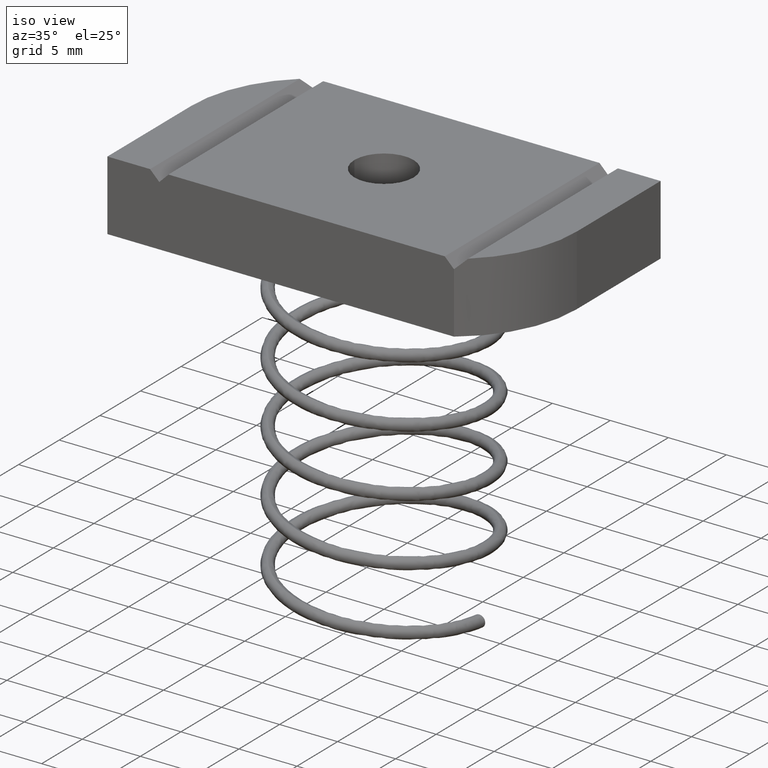
[diagram: clean part render]
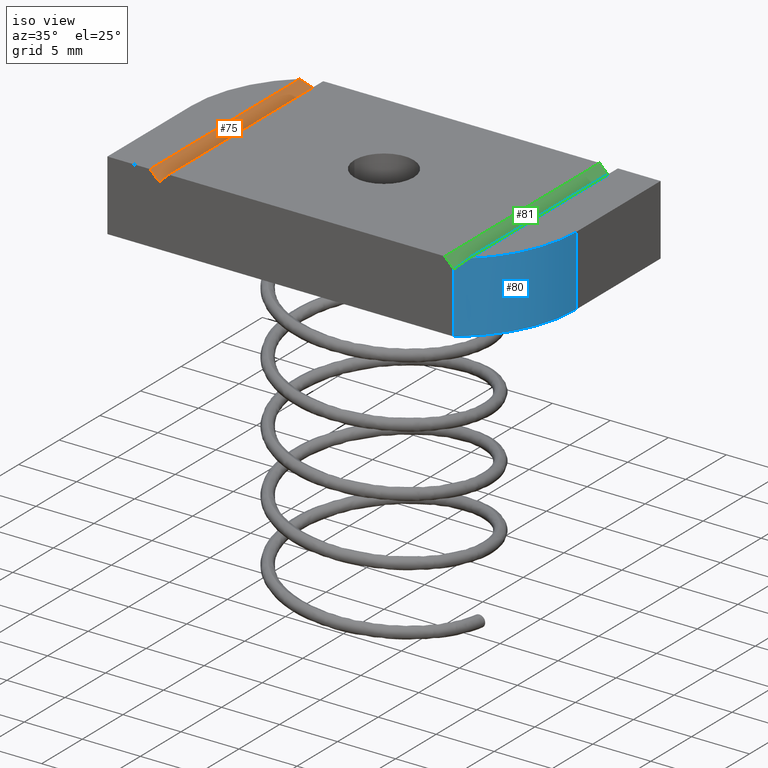
[diagram: same view with three faces highlighted in distinct colors, each labeled with its STEP entity id]
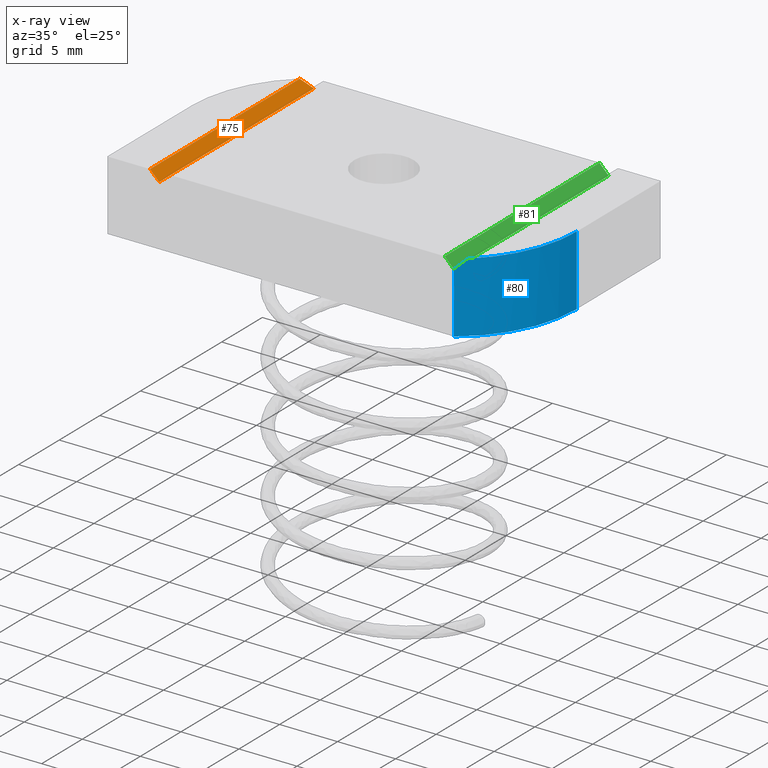
[diagram: x-ray of the same camera — body ghosted, the three highlighted faces saturated]
A machine part, iso view with three faces highlighted in distinct colors.
The next image is the same camera in x-ray (body ghosted, the three faces saturated) — at least one of them is partly hidden behind the body in this view.
Their STEP definitions:

[orange] entity #75 — the highlighted planar face has unit normal (-0.7071, 0, -0.7071).
#8 = ORIENTED_EDGE ( 'NONE', *, *, #92, .F. ) ;
#27 = LINE ( 'NONE', #1018, #1998 ) ;
#41 = ORIENTED_EDGE ( 'NONE', *, *, #90, .F. ) ;
#45 = ORIENTED_EDGE ( 'NONE', *, *, #126, .T. ) ;
#75 = ADVANCED_FACE ( 'NONE', ( #232 ), #194, .F. ) ;
#90 = EDGE_CURVE ( 'NONE', #2600, #2601, #2514, .T. ) ;
#92 = EDGE_CURVE ( 'NONE', #2598, #2600, #248, .T. ) ;
#120 = AXIS2_PLACEMENT_3D ( 'NONE', #150, #144, #145 ) ;
#126 = EDGE_CURVE ( 'NONE', #2598, #2580, #27, .T. ) ;
#133 = EDGE_CURVE ( 'NONE', #2601, #2580, #2004, .T. ) ;
#144 = DIRECTION ( 'NONE',  ( -0.7071067811865509000, 0.0000000000000000000, -0.7071067811865441300 ) ) ;
#145 = DIRECTION ( 'NONE',  ( -0.7071067811865441300, 0.0000000000000000000, 0.7071067811865509000 ) ) ;
#150 = CARTESIAN_POINT ( 'NONE',  ( -0.5312499999999996700, 0.3750000000000000600, 0.1189999999999999800 ) ) ;
#194 = PLANE ( 'NONE',  #120 ) ;
#232 = FACE_OUTER_BOUND ( 'NONE', #1158, .T. ) ;
#248 = LINE ( 'NONE', #677, #256 ) ;
#256 = VECTOR ( 'NONE', #684, 39.37007874015748100 ) ;
#672 = CARTESIAN_POINT ( 'NONE',  ( -0.5312499999999996700, 0.3501364502272289500, 0.1189999999999999900 ) ) ;
#677 = CARTESIAN_POINT ( 'NONE',  ( -0.5312499999999996700, -0.03099999999999995500, 0.1189999999999999900 ) ) ;
#679 = CARTESIAN_POINT ( 'NONE',  ( -0.5212276018830123100, 0.3589119345894124500, 0.1089776018830125700 ) ) ;
#680 = CARTESIAN_POINT ( 'NONE',  ( -0.5108032315010988500, 0.3672059138483088100, 0.09855323150109901500 ) ) ;
#681 = CARTESIAN_POINT ( 'NONE',  ( -0.5000000000000000000, 0.3750000000000000600, 0.08774999999999996700 ) ) ;
#684 = DIRECTION ( 'NONE',  ( 0.0000000000000000000, 1.000000000000000000, 0.0000000000000000000 ) ) ;
#1018 = CARTESIAN_POINT ( 'NONE',  ( -0.5312499999999996700, -0.3750000000000000600, 0.1189999999999999800 ) ) ;
#1019 = DIRECTION ( 'NONE',  ( 0.7071067811865440200, 0.0000000000000000000, -0.7071067811865509000 ) ) ;
#1029 = CARTESIAN_POINT ( 'NONE',  ( -0.5000000000000000000, 0.3750000000000000600, 0.08774999999999996700 ) ) ;
#1034 = DIRECTION ( 'NONE',  ( -0.0000000000000000000, -1.000000000000000000, -0.0000000000000000000 ) ) ;
#1079 = CARTESIAN_POINT ( 'NONE',  ( -0.5000000000000000000, -0.3750000000000000600, 0.08774999999999996700 ) ) ;
#1091 = CARTESIAN_POINT ( 'NONE',  ( -0.5312499999999996700, -0.3750000000000000600, 0.1189999999999999800 ) ) ;
#1093 = CARTESIAN_POINT ( 'NONE',  ( -0.5312499999999996700, 0.3501364502272289500, 0.1189999999999999900 ) ) ;
#1094 = CARTESIAN_POINT ( 'NONE',  ( -0.5000000000000000000, 0.3750000000000000600, 0.08774999999999996700 ) ) ;
#1158 = EDGE_LOOP ( 'NONE', ( #8, #45, #2643, #41 ) ) ;
#1998 = VECTOR ( 'NONE', #1019, 39.37007874015748900 ) ;
#2004 = LINE ( 'NONE', #1029, #2011 ) ;
#2011 = VECTOR ( 'NONE', #1034, 39.37007874015748100 ) ;
#2514 =( BOUNDED_CURVE ( )  B_SPLINE_CURVE ( 3, ( #672, #679, #680, #681 ),
 .UNSPECIFIED., .F., .T. ) 
 B_SPLINE_CURVE_WITH_KNOTS ( ( 4, 4 ),
 ( 3.993226455637453900, 4.087405860915651200 ),
 .UNSPECIFIED. ) 
 CURVE ( )  GEOMETRIC_REPRESENTATION_ITEM ( )  RATIONAL_B_SPLINE_CURVE ( ( 1.000000000000000000, 0.9992609898761521900, 0.9992609898761521900, 1.000000000000000000 ) ) 
 REPRESENTATION_ITEM ( '' )  );
#2580 = VERTEX_POINT ( 'NONE', #1079 ) ;
#2598 = VERTEX_POINT ( 'NONE', #1091 ) ;
#2600 = VERTEX_POINT ( 'NONE', #1093 ) ;
#2601 = VERTEX_POINT ( 'NONE', #1094 ) ;
#2643 = ORIENTED_EDGE ( 'NONE', *, *, #133, .F. ) ;

[blue] entity #80 — the highlighted cylindrical surface (partial cylindrical patch) has radius 10.7742 mm, axis along (-0, -0, -1).
#56 = ORIENTED_EDGE ( 'NONE', *, *, #2661, .T. ) ;
#57 = ORIENTED_EDGE ( 'NONE', *, *, #109, .T. ) ;
#80 = ADVANCED_FACE ( 'NONE', ( #241 ), #245, .T. ) ;
#99 = EDGE_CURVE ( 'NONE', #2579, #2591, #2512, .T. ) ;
#109 = EDGE_CURVE ( 'NONE', #2591, #2583, #1992, .T. ) ;
#128 = EDGE_CURVE ( 'NONE', #2579, #2599, #2005, .T. ) ;
#140 = EDGE_CURVE ( 'NONE', #2599, #2548, #2018, .T. ) ;
#158 = DIRECTION ( 'NONE',  ( -1.000000000000000000, 0.0000000000000000000, 0.0000000000000000000 ) ) ;
#165 = DIRECTION ( 'NONE',  ( -0.0000000000000000000, -0.0000000000000000000, -1.000000000000000000 ) ) ;
#167 = CARTESIAN_POINT ( 'NONE',  ( 0.2518181818181817700, -0.03099999999999995500, 0.1189999999999999900 ) ) ;
#228 = CIRCLE ( 'NONE', #2537, 0.4241818181818182700 ) ;
#241 = FACE_OUTER_BOUND ( 'NONE', #2036, .T. ) ;
#245 = CYLINDRICAL_SURFACE ( 'NONE', #2646, 0.4241818181818182700 ) ;
#990 = CARTESIAN_POINT ( 'NONE',  ( 0.5312499999999997800, -0.3501364502272287200, 0.1189999999999999900 ) ) ;
#993 = CARTESIAN_POINT ( 'NONE',  ( 0.5212276018830124300, -0.3589119345894123400, 0.1089776018830126100 ) ) ;
#994 = CARTESIAN_POINT ( 'NONE',  ( 0.5108032315010989600, -0.3672059138483087000, 0.09855323150109894500 ) ) ;
#995 = CARTESIAN_POINT ( 'NONE',  ( 0.5000000000000001100, -0.3750000000000000600, 0.08774999999999987000 ) ) ;
#1010 = CARTESIAN_POINT ( 'NONE',  ( 0.5000000000000001100, -0.3750000000000000600, 0.1189999999999999900 ) ) ;
#1011 = DIRECTION ( 'NONE',  ( -0.0000000000000000000, -0.0000000000000000000, -1.000000000000000000 ) ) ;
#1020 = CARTESIAN_POINT ( 'NONE',  ( 0.2518181818181817700, -0.03099999999999995500, 0.1189999999999999900 ) ) ;
#1023 = DIRECTION ( 'NONE',  ( 0.0000000000000000000, 0.0000000000000000000, 1.000000000000000000 ) ) ;
#1024 = DIRECTION ( 'NONE',  ( -1.000000000000000000, 0.0000000000000000000, 0.0000000000000000000 ) ) ;
#1041 = CARTESIAN_POINT ( 'NONE',  ( 0.6760000000000001600, -0.03099999999999990600, 0.1189999999999999900 ) ) ;
#1063 = DIRECTION ( 'NONE',  ( -0.0000000000000000000, -0.0000000000000000000, -1.000000000000000000 ) ) ;
#1068 = CARTESIAN_POINT ( 'NONE',  ( 0.6760000000000001600, -0.03099999999999990600, -0.1189999999999999900 ) ) ;
#1078 = CARTESIAN_POINT ( 'NONE',  ( 0.5312499999999997800, -0.3501364502272287200, 0.1189999999999999900 ) ) ;
#1082 = CARTESIAN_POINT ( 'NONE',  ( 0.5000000000000001100, -0.3750000000000000600, -0.1189999999999999900 ) ) ;
#1088 = CARTESIAN_POINT ( 'NONE',  ( 0.5000000000000001100, -0.3750000000000000600, 0.08774999999999987000 ) ) ;
#1092 = CARTESIAN_POINT ( 'NONE',  ( 0.6760000000000001600, -0.03099999999999990600, 0.1189999999999999900 ) ) ;
#1113 = CARTESIAN_POINT ( 'NONE',  ( 0.2518181818181817700, -0.03099999999999995500, -0.1189999999999999900 ) ) ;
#1126 = DIRECTION ( 'NONE',  ( 0.0000000000000000000, 0.0000000000000000000, 1.000000000000000000 ) ) ;
#1127 = DIRECTION ( 'NONE',  ( -1.000000000000000000, 0.0000000000000000000, 0.0000000000000000000 ) ) ;
#1992 = LINE ( 'NONE', #1010, #1993 ) ;
#1993 = VECTOR ( 'NONE', #1011, 39.37007874015748100 ) ;
#2005 = CIRCLE ( 'NONE', #2534, 0.4241818181818182700 ) ;
#2018 = LINE ( 'NONE', #1041, #2022 ) ;
#2022 = VECTOR ( 'NONE', #1063, 39.37007874015748100 ) ;
#2036 = EDGE_LOOP ( 'NONE', ( #2529, #2062, #57, #56, #2644 ) ) ;
#2062 = ORIENTED_EDGE ( 'NONE', *, *, #99, .T. ) ;
#2512 =( BOUNDED_CURVE ( )  B_SPLINE_CURVE ( 3, ( #990, #993, #994, #995 ),
 .UNSPECIFIED., .F., .T. ) 
 B_SPLINE_CURVE_WITH_KNOTS ( ( 4, 4 ),
 ( 3.993226455637453500, 4.087405860915651200 ),
 .UNSPECIFIED. ) 
 CURVE ( )  GEOMETRIC_REPRESENTATION_ITEM ( )  RATIONAL_B_SPLINE_CURVE ( ( 1.000000000000000000, 0.9992609898761521900, 0.9992609898761521900, 1.000000000000000000 ) ) 
 REPRESENTATION_ITEM ( '' )  );
#2529 = ORIENTED_EDGE ( 'NONE', *, *, #128, .F. ) ;
#2534 = AXIS2_PLACEMENT_3D ( 'NONE', #1020, #1023, #1024 ) ;
#2537 = AXIS2_PLACEMENT_3D ( 'NONE', #1113, #1126, #1127 ) ;
#2548 = VERTEX_POINT ( 'NONE', #1068 ) ;
#2579 = VERTEX_POINT ( 'NONE', #1078 ) ;
#2583 = VERTEX_POINT ( 'NONE', #1082 ) ;
#2591 = VERTEX_POINT ( 'NONE', #1088 ) ;
#2599 = VERTEX_POINT ( 'NONE', #1092 ) ;
#2644 = ORIENTED_EDGE ( 'NONE', *, *, #140, .F. ) ;
#2646 = AXIS2_PLACEMENT_3D ( 'NONE', #167, #165, #158 ) ;
#2661 = EDGE_CURVE ( 'NONE', #2583, #2548, #228, .T. ) ;

[green] entity #81 — the highlighted planar face has unit normal (-0.7071, 0, -0.7071).
#36 = ORIENTED_EDGE ( 'NONE', *, *, #136, .T. ) ;
#50 = ORIENTED_EDGE ( 'NONE', *, *, #102, .F. ) ;
#81 = ADVANCED_FACE ( 'NONE', ( #240 ), #168, .F. ) ;
#102 = EDGE_CURVE ( 'NONE', #2585, #2591, #1170, .T. ) ;
#135 = EDGE_CURVE ( 'NONE', #2575, #2585, #2015, .T. ) ;
#136 = EDGE_CURVE ( 'NONE', #2590, #2591, #2006, .T. ) ;
#163 = CARTESIAN_POINT ( 'NONE',  ( 0.4687499999999999400, 0.3750000000000000600, 0.1189999999999999900 ) ) ;
#168 = PLANE ( 'NONE',  #2648 ) ;
#181 = DIRECTION ( 'NONE',  ( -0.7071067811865484600, 0.0000000000000000000, -0.7071067811865465700 ) ) ;
#190 = DIRECTION ( 'NONE',  ( -0.7071067811865465700, 0.0000000000000000000, 0.7071067811865484600 ) ) ;
#223 = LINE ( 'NONE', #1118, #224 ) ;
#224 = VECTOR ( 'NONE', #1119, 39.37007874015748100 ) ;
#240 = FACE_OUTER_BOUND ( 'NONE', #1153, .T. ) ;
#999 = CARTESIAN_POINT ( 'NONE',  ( 0.5000000000000000000, 0.3750000000000000600, 0.08774999999999987000 ) ) ;
#1000 = DIRECTION ( 'NONE',  ( -0.0000000000000000000, -1.000000000000000000, -0.0000000000000000000 ) ) ;
#1033 = CARTESIAN_POINT ( 'NONE',  ( 0.4687499999999999400, -0.3750000000000000600, 0.1189999999999999900 ) ) ;
#1037 = CARTESIAN_POINT ( 'NONE',  ( 0.4687499999999999400, 0.3750000000000000600, 0.1189999999999999900 ) ) ;
#1038 = DIRECTION ( 'NONE',  ( 0.7071067811865465700, 0.0000000000000000000, -0.7071067811865484600 ) ) ;
#1040 = DIRECTION ( 'NONE',  ( 0.7071067811865465700, 0.0000000000000000000, -0.7071067811865484600 ) ) ;
#1076 = CARTESIAN_POINT ( 'NONE',  ( 0.4687499999999999400, 0.3750000000000000600, 0.1189999999999999900 ) ) ;
#1084 = CARTESIAN_POINT ( 'NONE',  ( 0.5000000000000000000, 0.3750000000000000600, 0.08774999999999987000 ) ) ;
#1087 = CARTESIAN_POINT ( 'NONE',  ( 0.4687499999999999400, -0.3750000000000000600, 0.1189999999999999900 ) ) ;
#1088 = CARTESIAN_POINT ( 'NONE',  ( 0.5000000000000001100, -0.3750000000000000600, 0.08774999999999987000 ) ) ;
#1118 = CARTESIAN_POINT ( 'NONE',  ( 0.4687499999999999400, 0.3750000000000000600, 0.1189999999999999900 ) ) ;
#1119 = DIRECTION ( 'NONE',  ( -0.0000000000000000000, -1.000000000000000000, -0.0000000000000000000 ) ) ;
#1153 = EDGE_LOOP ( 'NONE', ( #36, #50, #2531, #2532 ) ) ;
#1170 = LINE ( 'NONE', #999, #1990 ) ;
#1990 = VECTOR ( 'NONE', #1000, 39.37007874015748100 ) ;
#2006 = LINE ( 'NONE', #1033, #2017 ) ;
#2015 = LINE ( 'NONE', #1037, #2016 ) ;
#2016 = VECTOR ( 'NONE', #1038, 39.37007874015748100 ) ;
#2017 = VECTOR ( 'NONE', #1040, 39.37007874015748100 ) ;
#2531 = ORIENTED_EDGE ( 'NONE', *, *, #135, .F. ) ;
#2532 = ORIENTED_EDGE ( 'NONE', *, *, #2658, .T. ) ;
#2575 = VERTEX_POINT ( 'NONE', #1076 ) ;
#2585 = VERTEX_POINT ( 'NONE', #1084 ) ;
#2590 = VERTEX_POINT ( 'NONE', #1087 ) ;
#2591 = VERTEX_POINT ( 'NONE', #1088 ) ;
#2648 = AXIS2_PLACEMENT_3D ( 'NONE', #163, #181, #190 ) ;
#2658 = EDGE_CURVE ( 'NONE', #2575, #2590, #223, .T. ) ;